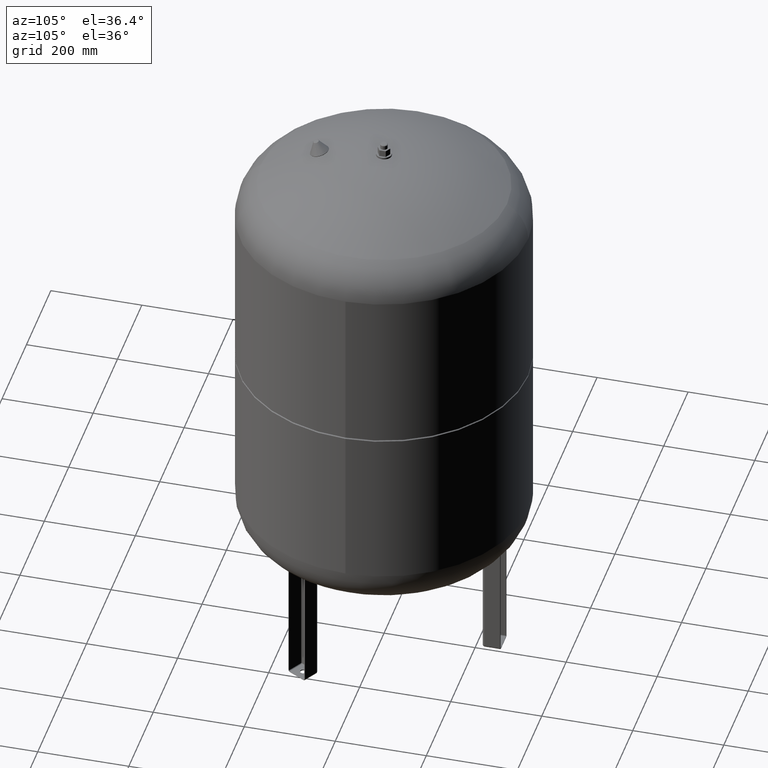
[diagram: clean part render]
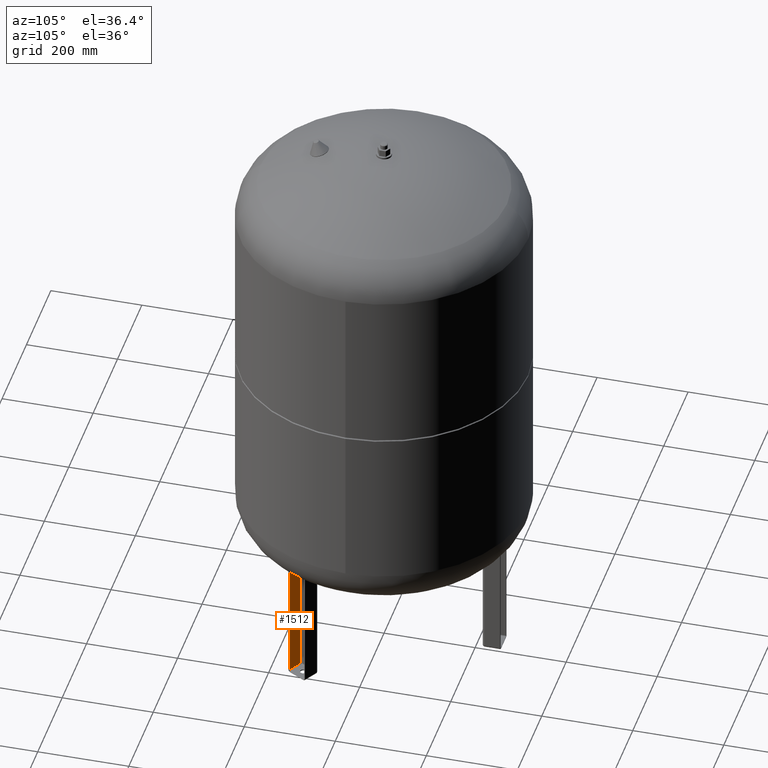
[diagram: same view with one face highlighted and labeled with its STEP entity id]
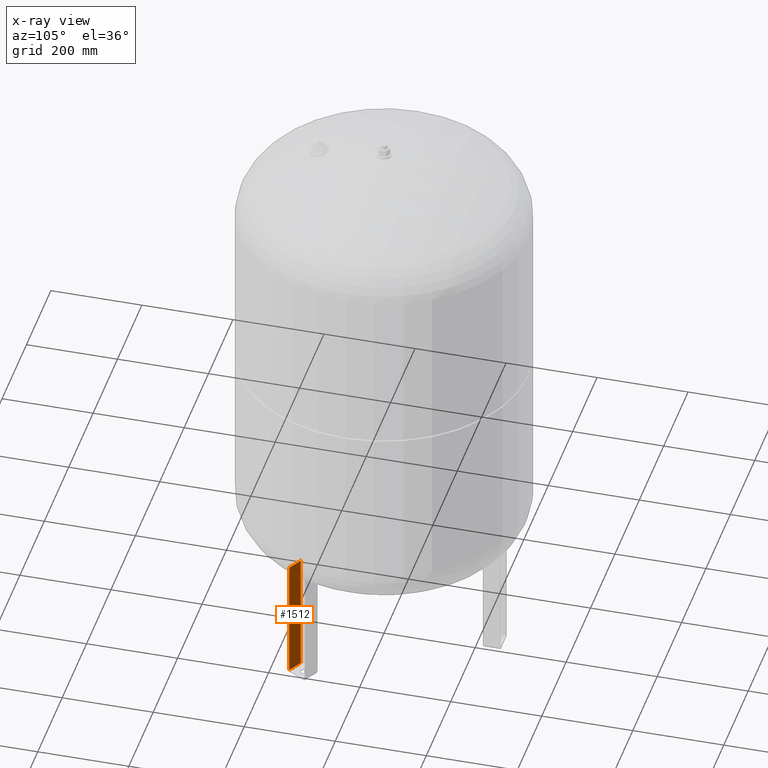
[diagram: x-ray of the same camera — body ghosted, the highlighted face saturated]
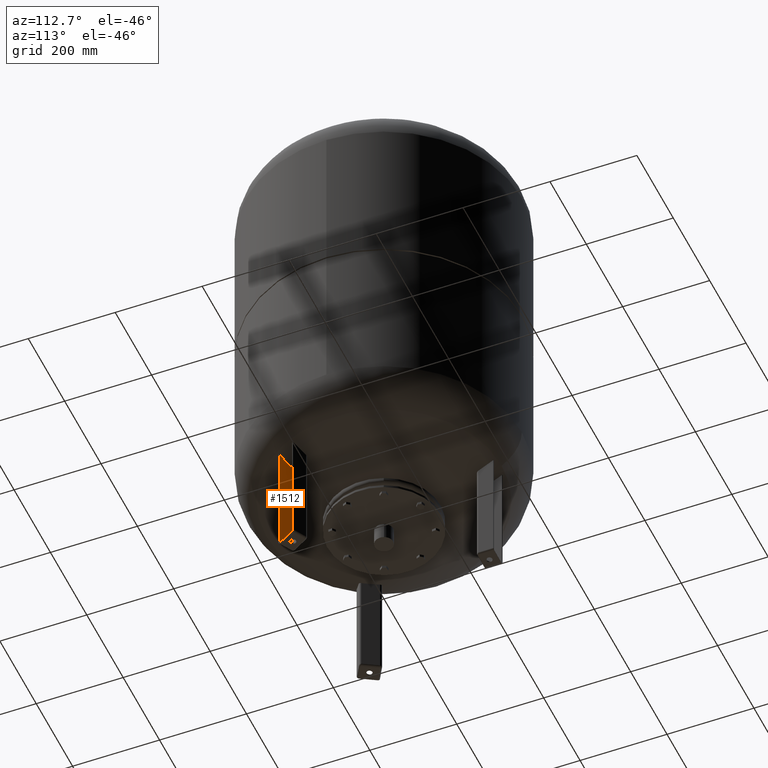
[diagram: same view with one face highlighted and labeled with its STEP entity id]
A machine part, auxiliary view. The second image highlights one B-rep face of the part: STEP entity #1512.
The next image is the same camera in x-ray: the body ghosted, the highlighted face saturated — about 0% of this face is hidden behind the body in this view.
A second angle (auxiliary view) of the same face is appended — the face is thin or edge-on in the first view.
In plain terms, the highlighted planar face has unit normal (-0.5, -0.866, -0).
Its self-contained STEP definition (entity closure, byte-faithful):
#1228=CARTESIAN_POINT('',(215.215643089630670,-150.235571585149930,274.0));
#1229=VERTEX_POINT('',#1228);
#1237=CARTESIAN_POINT('',(185.770779360959780,-133.235571585149930,274.0));
#1238=VERTEX_POINT('',#1237);
#1239=CARTESIAN_POINT('',(185.770779360959780,-133.235571585149930,274.0));
#1240=DIRECTION('',(0.866025403784438,-0.500000000000000,0.0));
#1241=VECTOR('',#1240,33.999999999999986);
#1242=LINE('',#1239,#1241);
#1243=EDGE_CURVE('',#1238,#1229,#1242,.T.);
#1428=CARTESIAN_POINT('',(215.215643089630670,-150.235571585149930,4.499999999999996));
#1429=VERTEX_POINT('',#1428);
#1479=CARTESIAN_POINT('',(215.215643089630670,-150.235571585149930,4.499999999999996));
#1480=DIRECTION('',(0.0,0.0,1.0));
#1481=VECTOR('',#1480,269.500000000000000);
#1482=LINE('',#1479,#1481);
#1483=EDGE_CURVE('',#1429,#1229,#1482,.T.);
#1489=CARTESIAN_POINT('',(216.081668493415120,-150.735571585149930,1.999999999999996));
#1490=DIRECTION('',(-0.500000000000000,-0.866025403784439,-1.836970E-016));
#1491=DIRECTION('',(0.866025403784438,-0.500000000000000,2.311373E-032));
#1492=AXIS2_PLACEMENT_3D('',#1489,#1490,#1491);
#1493=PLANE('',#1492);
#1494=ORIENTED_EDGE('',*,*,#1483,.F.);
#1495=CARTESIAN_POINT('',(185.770779360959780,-133.235571585149930,4.499999999999996));
#1496=VERTEX_POINT('',#1495);
#1497=CARTESIAN_POINT('',(185.770779360959780,-133.235571585149930,4.499999999999996));
#1498=DIRECTION('',(0.866025403784438,-0.500000000000000,0.0));
#1499=VECTOR('',#1498,33.999999999999986);
#1500=LINE('',#1497,#1499);
#1501=EDGE_CURVE('',#1496,#1429,#1500,.T.);
#1502=ORIENTED_EDGE('',*,*,#1501,.F.);
#1503=CARTESIAN_POINT('',(185.770779360959780,-133.235571585149930,274.0));
#1504=DIRECTION('',(0.0,0.0,-1.0));
#1505=VECTOR('',#1504,269.500000000000000);
#1506=LINE('',#1503,#1505);
#1507=EDGE_CURVE('',#1238,#1496,#1506,.T.);
#1508=ORIENTED_EDGE('',*,*,#1507,.F.);
#1509=ORIENTED_EDGE('',*,*,#1243,.T.);
#1510=EDGE_LOOP('',(#1494,#1502,#1508,#1509));
#1511=FACE_OUTER_BOUND('',#1510,.T.);
#1512=ADVANCED_FACE('',(#1511),#1493,.F.);